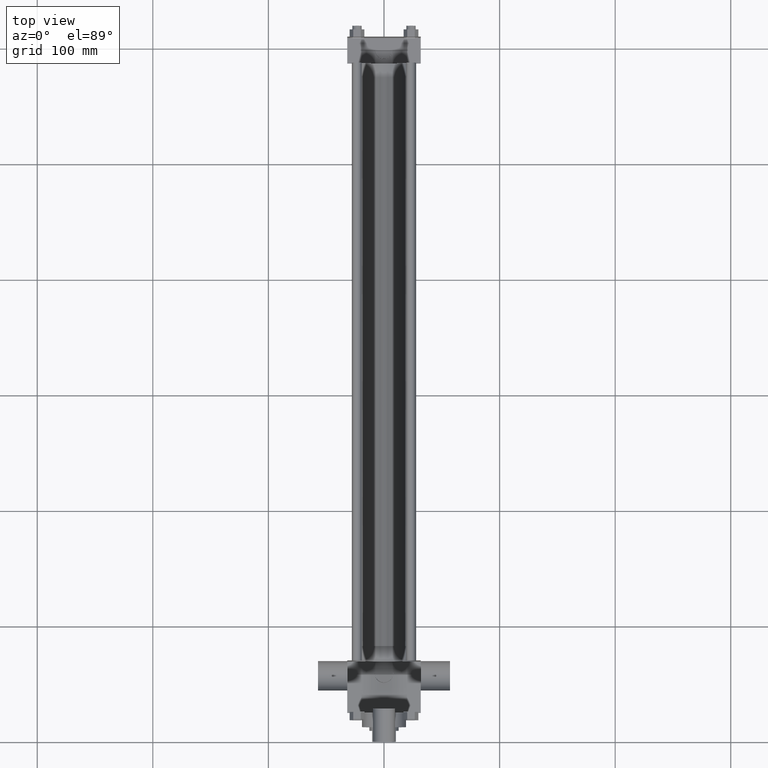
[diagram: clean part render]
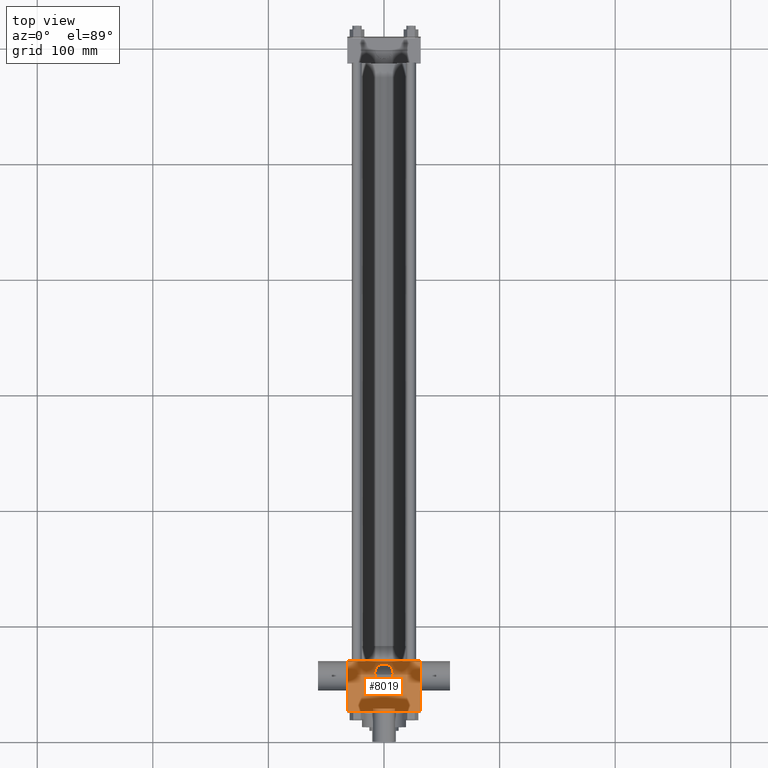
[diagram: same view with one face highlighted and labeled with its STEP entity id]
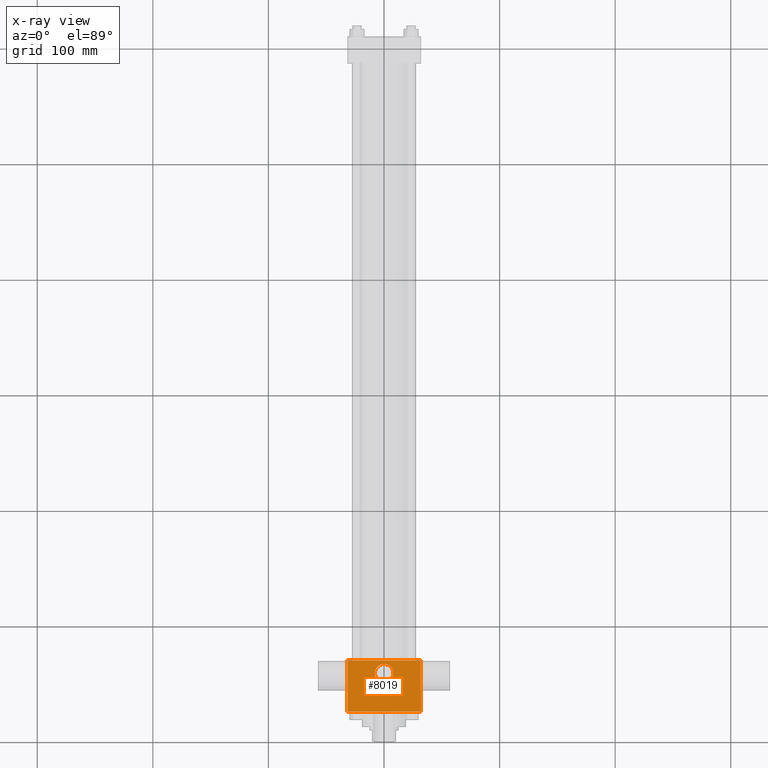
[diagram: x-ray of the same camera — body ghosted, the highlighted face saturated]
A machine part, top view. The second image highlights one B-rep face of the part: STEP entity #8019.
The next image is the same camera in x-ray: the body ghosted, the highlighted face saturated — about 0% of this face is hidden behind the body in this view.
In plain terms, the highlighted planar face has unit normal (0, 0, 1).
Its self-contained STEP definition (entity closure, byte-faithful):
#494=VERTEX_POINT('',#495);
#495=CARTESIAN_POINT('',(-3.175000000E+001,6.985000000E+001,3.175000000E+001));
#496=EDGE_CURVE('',#501,#494,#497,.T.);
#497=LINE('',#498,#499);
#498=CARTESIAN_POINT('',(3.175000000E+001,6.985000000E+001,3.175000000E+001));
#499=VECTOR('',#500,1.0E+000);
#500=DIRECTION('',(-1.0E+000,0.0E+000,0.0E+000));
#501=VERTEX_POINT('',#502);
#502=CARTESIAN_POINT('',(3.175000000E+001,6.985000000E+001,3.175000000E+001));
#590=FACE_OUTER_BOUND('',#592,.T.);
#591=FACE_BOUND('',#593,.T.);
#592=EDGE_LOOP('',(#594,#595,#596,#597));
#593=EDGE_LOOP('',(#617));
#594=ORIENTED_EDGE('',*,*,#598,.T.);
#595=ORIENTED_EDGE('',*,*,#605,.F.);
#596=ORIENTED_EDGE('',*,*,#612,.F.);
#597=ORIENTED_EDGE('',*,*,#496,.T.);
#598=EDGE_CURVE('',#494,#603,#599,.T.);
#599=LINE('',#600,#601);
#600=CARTESIAN_POINT('',(-3.175000000E+001,6.985000000E+001,3.175000000E+001));
#601=VECTOR('',#602,1.0E+000);
#602=DIRECTION('',(0.0E+000,-1.0E+000,0.0E+000));
#603=VERTEX_POINT('',#604);
#604=CARTESIAN_POINT('',(-3.175000000E+001,2.540000000E+001,3.175000000E+001));
#605=EDGE_CURVE('',#610,#603,#606,.T.);
#606=LINE('',#607,#608);
#607=CARTESIAN_POINT('',(3.175000000E+001,2.540000000E+001,3.175000000E+001));
#608=VECTOR('',#609,1.0E+000);
#609=DIRECTION('',(-1.0E+000,0.0E+000,0.0E+000));
#610=VERTEX_POINT('',#611);
#611=CARTESIAN_POINT('',(3.175000000E+001,2.540000000E+001,3.175000000E+001));
#612=EDGE_CURVE('',#501,#610,#613,.T.);
#613=LINE('',#614,#615);
#614=CARTESIAN_POINT('',(3.175000000E+001,6.985000000E+001,3.175000000E+001));
#615=VECTOR('',#616,1.0E+000);
#616=DIRECTION('',(0.0E+000,-1.0E+000,0.0E+000));
#617=ORIENTED_EDGE('',*,*,#618,.T.);
#618=EDGE_CURVE('',#624,#624,#619,.T.);
#619=CIRCLE('',#620,7.963027000E+000);
#620=AXIS2_PLACEMENT_3D('',#621,#622,#623);
#621=CARTESIAN_POINT('',(0.000000000E+000,5.873750000E+001,3.175000000E+001));
#622=DIRECTION('',(0.0E+000,0.0E+000,-1.0E+000));
#623=DIRECTION('',(1.0E+000,0.0E+000,0.0E+000));
#624=VERTEX_POINT('',#625);
#625=CARTESIAN_POINT('',(7.963027000E+000,5.873750000E+001,3.175000000E+001));
#626=PLANE('',#627);
#627=AXIS2_PLACEMENT_3D('',#628,#629,#630);
#628=CARTESIAN_POINT('',(3.175000000E+001,6.985000000E+001,3.175000000E+001));
#629=DIRECTION('',(0.0E+000,0.0E+000,1.0E+000));
#630=DIRECTION('',(1.0E+000,0.0E+000,0.0E+000));
#8019=ADVANCED_FACE('',(#590,#591),#626,.T.);